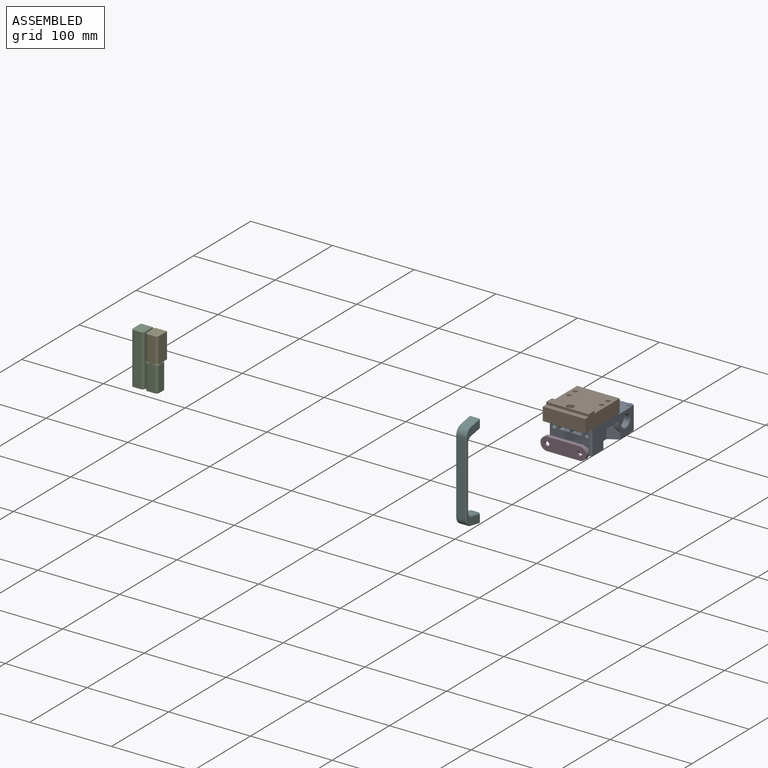
[diagram: assembled view]
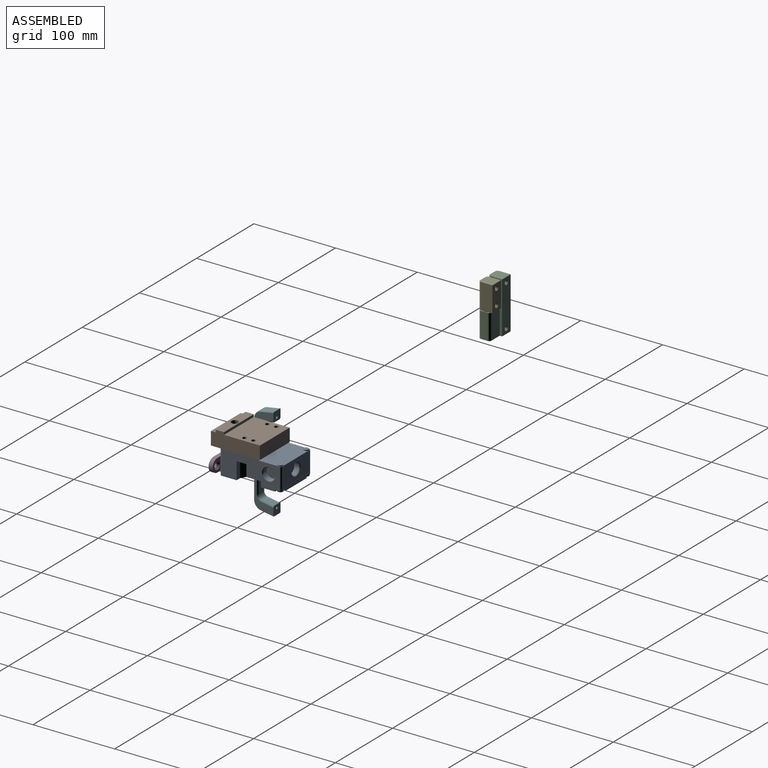
[diagram: assembled view, second angle]
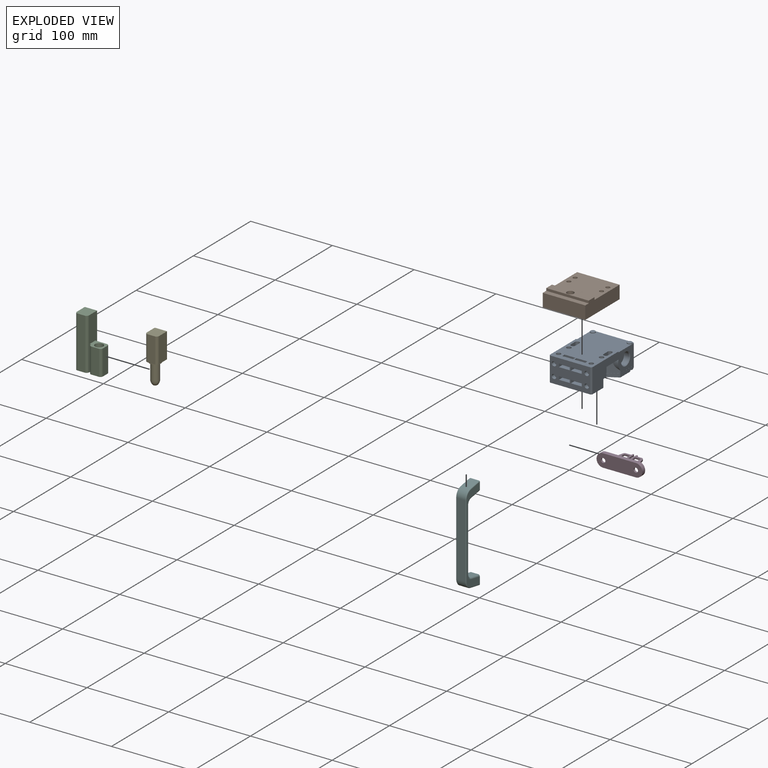
[diagram: exploded view]
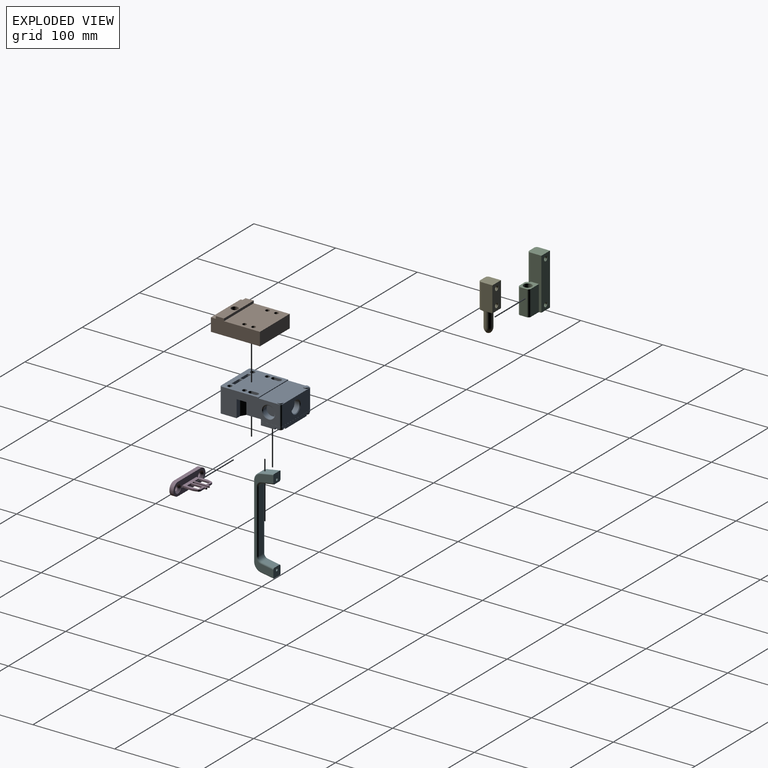
[diagram: exploded view, second angle]
ASSEMBLY  parts=6 mates=2
PART A: 183 faces, bbox 52.7x75.3x30 mm
  f0: plane 52x47mm, normal (0,0,-1), area 2116.3mm2, adj f1,f2,f120,f121,f122,f123,f124,f125
  f1: plane 71x30mm, normal (1,0,0), area 1211.5mm2, adj f0,f77,f154,f155,f156,f159,f161,f162
  f2: plane 71x30mm, normal (-1,0,0), area 1211.5mm2, adj f0,f77,f151,f152,f153,f159,f163,f164
  f3: sphere r=10.19mm, area 21.5mm2, adj f33,f51,f52,f53,f54,f55,f56,f57
  f4: sphere r=10.19mm, area 21.5mm2, adj f29,f34,f35,f36,f37,f38,f39,f40
  f5: plane 2.46x2.46mm, normal (0,0,1), area 1.1mm2, adj f8,f10,f11,f32
  f6: plane 2.46x2.46mm, normal (0,0,1), area 1.1mm2, adj f9,f11,f12,f28
  f7: plane 52x32mm, normal (0,0,1), area 1469.2mm2, adj f8,f9,f11,f13,f14,f15,f16,f17
  f8: plane 22.82x4.4mm, normal (-1,0,0), area 89.4mm2, adj f5,f7,f10,f16,f22,f25,f30,f68
  f9: plane 22.82x4.4mm, normal (1,0,0), area 89.4mm2, adj f6,f7,f12,f15,f18,f20,f26,f68
  f10: cylinder r=2mm len=2.4mm, axis (0,0,-1), area 7.5mm2, adj f5,f8,f11,f68
  f11: plane 48x4.4mm, normal (0,-1,0), area 189.2mm2, adj f5,f6,f7,f10,f12,f18,f19,f22
  f12: cylinder r=2mm len=2.4mm, axis (0,0,-1), area 7.5mm2, adj f6,f9,f11,f68
  f13: plane 4.4x0.25mm, normal (-1,0,0), area 1.1mm2, adj f7,f16,f17,f68
  f14: plane 4.4x0.25mm, normal (1,0,0), area 1.1mm2, adj f7,f15,f17,f68
  f15: plane 12x6.93mm, normal (0.5,0.87,0), area 61mm2, adj f7,f9,f14,f68
  f16: plane 12x6.93mm, normal (-0.5,0.87,0), area 61mm2, adj f7,f8,f13,f68
  f17: plane 28x4.4mm, normal (0,1,0), area 123.2mm2, adj f7,f13,f14,f68
  f18: plane 7.5x7.5mm, normal (0,0,1), area 9.4mm2, adj f9,f11,f19,f20,f21,f28
  f19: plane 3.5x2mm, normal (1,0,0), area 7mm2, adj f7,f11,f18,f21
  f20: plane 3.5x2mm, normal (0,-1,0), area 7mm2, adj f7,f9,f18,f21
  f21: cylinder r=4mm len=4mm, axis (0,0,-1), area 12.6mm2, adj f7,f18,f19,f20
  f22: plane 7.5x7.5mm, normal (0,0,1), area 9.4mm2, adj f8,f11,f23,f24,f25,f32
  f23: plane 3.5x2mm, normal (-1,0,0), area 7mm2, adj f7,f11,f22,f24
  f24: cylinder r=4mm len=4mm, axis (0,0,-1), area 12.6mm2, adj f7,f22,f23,f25
  f25: plane 3.5x2mm, normal (0,-1,0), area 7mm2, adj f7,f8,f22,f24
  f26: plane 2.08x0.15mm, normal (0,0,-1), area 0.2mm2, adj f9,f28
  f27: plane 2.08x0.15mm, normal (0,0,-1), area 0.2mm2, adj f11,f28
  f28: cone r=3.65mm half-angle=6deg, axis (0,0,-1), area 23.1mm2, adj f6,f18,f26,f27,f29
  f29: torus R=2.89mm, axis (0,0,1), area 16.1mm2, adj f4,f28
  f30: plane 2.08x0.15mm, normal (0,0,-1), area 0.2mm2, adj f8,f32
  f31: plane 2.08x0.15mm, normal (0,0,-1), area 0.2mm2, adj f11,f32
  f32: cone r=3.65mm half-angle=6deg, axis (0,0,-1), area 23.1mm2, adj f5,f22,f30,f31,f33
  f33: torus R=2.89mm, axis (0,0,1), area 16.1mm2, adj f3,f32
  f34: plane 1.48x0.74mm, normal (0.71,-0.71,0), area 1.5mm2, adj f4,f35,f49,f50
  f35: plane 1.32x0.85mm, normal (0.71,0.71,0), area 1.6mm2, adj f4,f34,f36,f50
  f36: plane 1.48x0.74mm, normal (-0.71,0.71,0), area 1.5mm2, adj f4,f35,f37,f50
  f37: cylinder r=0.5mm len=1.5mm, axis (0,0,-1), area 1.2mm2, adj f4,f36,f38,f50
  f38: plane 1.48x0.74mm, normal (0.71,0.71,0), area 1.5mm2, adj f4,f37,f39,f50
  f39: plane 1.32x0.85mm, normal (-0.71,0.71,0), area 1.6mm2, adj f4,f38,f40,f50
  f40: plane 1.48x0.74mm, normal (-0.71,-0.71,0), area 1.5mm2, adj f4,f39,f41,f50
  f41: cylinder r=0.5mm len=1.5mm, axis (0,0,-1), area 1.2mm2, adj f4,f40,f42,f50
  f42: plane 1.48x0.74mm, normal (-0.71,0.71,0), area 1.5mm2, adj f4,f41,f43,f50
  f43: plane 1.32x0.85mm, normal (-0.71,-0.71,0), area 1.6mm2, adj f4,f42,f44,f50
  f44: plane 1.48x0.74mm, normal (0.71,-0.71,0), area 1.5mm2, adj f4,f43,f45,f50
  f45: cylinder r=0.5mm len=1.5mm, axis (0,0,-1), area 1.2mm2, adj f4,f44,f46,f50
  f46: plane 1.48x0.74mm, normal (-0.71,-0.71,0), area 1.5mm2, adj f4,f45,f47,f50
  f47: plane 1.32x0.85mm, normal (0.71,-0.71,0), area 1.6mm2, adj f4,f46,f48,f50
  f48: plane 1.48x0.74mm, normal (0.71,0.71,0), area 1.5mm2, adj f4,f47,f49,f50
  f49: cylinder r=0.5mm len=1.5mm, axis (0,0,-1), area 1.2mm2, adj f4,f34,f48,f50
  f50: plane 3.89x3.89mm, normal (0,0,1), area 9.1mm2, adj f34,f35,f36,f37,f38,f39,f40,f41
  f51: plane 1.48x0.74mm, normal (0.71,-0.71,0), area 1.5mm2, adj f3,f52,f66,f67
  f52: plane 1.32x0.85mm, normal (0.71,0.71,0), area 1.6mm2, adj f3,f51,f53,f67
  f53: plane 1.48x0.74mm, normal (-0.71,0.71,0), area 1.5mm2, adj f3,f52,f54,f67
  f54: cylinder r=0.5mm len=1.5mm, axis (0,0,-1), area 1.2mm2, adj f3,f53,f55,f67
  f55: plane 1.48x0.74mm, normal (0.71,0.71,0), area 1.5mm2, adj f3,f54,f56,f67
  f56: plane 1.32x0.85mm, normal (-0.71,0.71,0), area 1.6mm2, adj f3,f55,f57,f67
  f57: plane 1.48x0.74mm, normal (-0.71,-0.71,0), area 1.5mm2, adj f3,f56,f58,f67
  f58: cylinder r=0.5mm len=1.5mm, axis (0,0,-1), area 1.2mm2, adj f3,f57,f59,f67
  f59: plane 1.48x0.74mm, normal (-0.71,0.71,0), area 1.5mm2, adj f3,f58,f60,f67
  f60: plane 1.32x0.85mm, normal (-0.71,-0.71,0), area 1.6mm2, adj f3,f59,f61,f67
  f61: plane 1.48x0.74mm, normal (0.71,-0.71,0), area 1.5mm2, adj f3,f60,f62,f67
  f62: cylinder r=0.5mm len=1.5mm, axis (0,0,-1), area 1.2mm2, adj f3,f61,f63,f67
  f63: plane 1.48x0.74mm, normal (-0.71,-0.71,0), area 1.5mm2, adj f3,f62,f64,f67
  f64: plane 1.32x0.85mm, normal (0.71,-0.71,0), area 1.6mm2, adj f3,f63,f65,f67
  f65: plane 1.48x0.74mm, normal (0.71,0.71,0), area 1.5mm2, adj f3,f64,f66,f67
  f66: cylinder r=0.5mm len=1.5mm, axis (0,0,-1), area 1.2mm2, adj f3,f51,f65,f67
  f67: plane 3.89x3.89mm, normal (0,0,1), area 9.1mm2, adj f51,f52,f53,f54,f55,f56,f57,f58
  f68: plane 52x32mm, normal (0,0,-1), area 16.7mm2, adj f8,f9,f10,f11,f12,f13,f14,f15
  f69: plane 22.72x0.2mm, normal (-1,0,0), area 4.5mm2, adj f68,f70,f76,f77
  f70: plane 12.43x7.18mm, normal (-0.5,0.87,0), area 2.9mm2, adj f68,f69,f71,f77
  f71: plane 26.93x0.2mm, normal (0,1,0), area 5.4mm2, adj f68,f70,f72,f77
  f72: plane 12.43x7.18mm, normal (0.5,0.87,0), area 2.9mm2, adj f68,f71,f73,f77
  f73: plane 22.72x0.2mm, normal (1,0,0), area 4.5mm2, adj f68,f72,f74,f77
  f74: cylinder r=1.9mm len=1.9mm, axis (0,0,-1), area 0.6mm2, adj f68,f73,f75,f77
  f75: plane 48x0.2mm, normal (0,-1,0), area 9.6mm2, adj f68,f74,f76,f77
  f76: cylinder r=1.9mm len=1.9mm, axis (0,0,-1), area 0.6mm2, adj f68,f69,f75,f77
  f77: plane 52x32.5mm, normal (0,0,1), area 30.7mm2, adj f1,f2,f69,f70,f71,f72,f73,f74
  f78: plane 13.3x4mm, normal (0,1,0), area 53.2mm2, adj f93,f94,f95,f96
  f79: plane 13.3x4mm, normal (0,1,0), area 53.2mm2, adj f97,f98,f99,f100
  f80: plane 13.3x4mm, normal (0,1,0), area 53.2mm2, adj f101,f102,f103,f104
  f81: plane 13.3x4mm, normal (0,1,0), area 53.2mm2, adj f105,f106,f107,f108
  f82: plane 5.5x5.5mm, normal (0,1,0), area 23.8mm2, adj f109
  f83: plane 5.5x5.5mm, normal (0,1,0), area 23.8mm2, adj f110
  f84: plane 5.5x5.5mm, normal (0,1,0), area 23.8mm2, adj f111
  f85: plane 5.5x5.5mm, normal (0,1,0), area 23.8mm2, adj f112
  f86: plane 14.38x14.38mm, normal (-1,0,0), area 162.3mm2, adj f117
  f87: plane 14.38x14.38mm, normal (1,0,0), area 162.3mm2, adj f118
  f88: plane 14.38x14.38mm, normal (0,-1,0), area 162.3mm2, adj f119
  f89: plane 13.3x4mm, normal (0,0,-1), area 53.2mm2, adj f120,f121,f122,f123
  f90: plane 5.5x5.5mm, normal (0,0,-1), area 23.8mm2, adj f124
  f91: plane 5.5x5.5mm, normal (0,0,-1), area 23.8mm2, adj f125
  f92: plane 13.3x4mm, normal (0,0,-1), area 53.2mm2, adj f126,f127,f128,f129
  f93: plane 6x4mm, normal (1,0,0), area 24mm2, adj f78,f94,f96,f130
  f94: plane 13.3x6mm, normal (0,0,-1), area 79.8mm2, adj f78,f93,f95,f130
  f95: plane 6x4mm, normal (-1,0,0), area 24mm2, adj f78,f94,f96,f130
  f96: plane 13.3x6mm, normal (0,0,1), area 79.8mm2, adj f78,f93,f95,f130
  f97: plane 6x4mm, normal (1,0,0), area 24mm2, adj f79,f98,f100,f130
  f98: plane 13.3x6mm, normal (0,0,-1), area 79.8mm2, adj f79,f97,f99,f130
  f99: plane 6x4mm, normal (-1,0,0), area 24mm2, adj f79,f98,f100,f130
  f100: plane 13.3x6mm, normal (0,0,1), area 79.8mm2, adj f79,f97,f99,f130
  f101: plane 6x4mm, normal (1,0,0), area 24mm2, adj f80,f102,f104,f130
  f102: plane 13.3x6mm, normal (0,0,-1), area 79.8mm2, adj f80,f101,f103,f130
  f103: plane 6x4mm, normal (-1,0,0), area 24mm2, adj f80,f102,f104,f130
  f104: plane 13.3x6mm, normal (0,0,1), area 79.8mm2, adj f80,f101,f103,f130
  f105: plane 6x4mm, normal (1,0,0), area 24mm2, adj f81,f106,f108,f130
  f106: plane 13.3x6mm, normal (0,0,-1), area 79.8mm2, adj f81,f105,f107,f130
  f107: plane 6x4mm, normal (-1,0,0), area 24mm2, adj f81,f106,f108,f130
  f108: plane 13.3x6mm, normal (0,0,1), area 79.8mm2, adj f81,f105,f107,f130
  f109: cylinder r=2.75mm len=5.5mm, axis (0,1,0), area 77.8mm2, adj f82,f130
  f110: cylinder r=2.75mm len=5.5mm, axis (0,1,0), area 77.8mm2, adj f83,f130
  f111: cylinder r=2.75mm len=5.5mm, axis (0,1,0), area 77.8mm2, adj f84,f130
  f112: cylinder r=2.75mm len=5.5mm, axis (0,1,0), area 77.8mm2, adj f85,f130
  f113: plane 13.3x4mm, normal (0,0,1), area 53.2mm2, adj f131,f132,f133,f134
  f114: plane 13.3x4mm, normal (0,0,1), area 53.2mm2, adj f135,f136,f137,f138
  f115: plane 5.5x5.5mm, normal (0,0,1), area 23.8mm2, adj f139
  f116: plane 5.5x5.5mm, normal (0,0,1), area 23.8mm2, adj f140
  f117: cylinder r=7.19mm len=14.38mm, axis (1,0,0), area 279.5mm2, adj f86,f153
  f118: cylinder r=7.19mm len=14.38mm, axis (1,0,0), area 279.5mm2, adj f87,f156
  f119: cylinder r=7.19mm len=14.38mm, axis (0,1,0), area 279.5mm2, adj f88,f157
  f120: plane 5.99x4mm, normal (-1,0,0), area 24mm2, adj f0,f89,f121,f123
  f121: plane 13.3x5.99mm, normal (0,1,0), area 79.7mm2, adj f0,f89,f120,f122
  f122: plane 5.99x4mm, normal (1,0,0), area 24mm2, adj f0,f89,f121,f123
  f123: plane 13.3x5.99mm, normal (0,-1,0), area 79.7mm2, adj f0,f89,f120,f122
  f124: cylinder r=2.75mm len=5.5mm, axis (0,0,1), area 81.5mm2, adj f0,f90
  f125: cylinder r=2.75mm len=5.5mm, axis (0,0,1), area 81.5mm2, adj f0,f91
  f126: plane 5.99x4mm, normal (-1,0,0), area 24mm2, adj f0,f92,f127,f129
  f127: plane 13.3x5.99mm, normal (0,1,0), area 79.7mm2, adj f0,f92,f126,f128
  f128: plane 5.99x4mm, normal (1,0,0), area 24mm2, adj f0,f92,f127,f129
  f129: plane 13.3x5.99mm, normal (0,-1,0), area 79.7mm2, adj f0,f92,f126,f128
  f130: plane 48x30mm, normal (0,1,0), area 1132.2mm2, adj f0,f93,f94,f95,f96,f97,f98,f99
  f131: plane 13.3x5.99mm, normal (0,1,0), area 79.7mm2, adj f113,f132,f134,f159
  f132: plane 5.99x4mm, normal (-1,0,0), area 24mm2, adj f113,f131,f133,f159
  f133: plane 13.3x5.99mm, normal (0,-1,0), area 79.7mm2, adj f113,f132,f134,f159
  f134: plane 5.99x4mm, normal (1,0,0), area 24mm2, adj f113,f131,f133,f159
  f135: plane 13.3x5.99mm, normal (0,1,0), area 79.7mm2, adj f114,f136,f138,f159
  f136: plane 5.99x4mm, normal (-1,0,0), area 24mm2, adj f114,f135,f137,f159
  f137: plane 13.3x5.99mm, normal (0,-1,0), area 79.7mm2, adj f114,f136,f138,f159
  f138: plane 5.99x4mm, normal (1,0,0), area 24mm2, adj f114,f135,f137,f159
  f139: cylinder r=2.75mm len=5.5mm, axis (0,0,1), area 81.5mm2, adj f115,f159
  f140: cylinder r=2.75mm len=5.5mm, axis (0,0,1), area 81.5mm2, adj f116,f159
  f141: cylinder r=2.75mm len=9mm, axis (0,0,-1), area 155.5mm2, adj f0,f161
  f142: plane 9x7mm, normal (-1,0,0), area 63mm2, adj f0,f143,f145,f161
  f143: cylinder r=2.75mm len=9mm, axis (0,0,-1), area 77.8mm2, adj f0,f142,f144,f161
  f144: plane 9x7mm, normal (1,0,0), area 63mm2, adj f0,f143,f145,f161
  f145: cylinder r=2.75mm len=9mm, axis (0,0,-1), area 77.8mm2, adj f0,f142,f144,f161
  f146: cylinder r=2.75mm len=9mm, axis (0,0,-1), area 155.5mm2, adj f0,f164
  f147: plane 9x7mm, normal (-1,0,0), area 63mm2, adj f0,f148,f150,f164
  f148: cylinder r=2.75mm len=9mm, axis (0,0,-1), area 77.8mm2, adj f0,f147,f149,f164
  f149: plane 9x7mm, normal (1,0,0), area 63mm2, adj f0,f148,f150,f164
  f150: cylinder r=2.75mm len=9mm, axis (0,0,-1), area 77.8mm2, adj f0,f147,f149,f164
  f151: cylinder r=2mm len=30mm, axis (0,0,-1), area 94.2mm2, adj f0,f2,f130,f159
  f152: plane 21x6mm, normal (0,-1,0), area 126mm2, adj f2,f158,f159,f164
  f153: cone r=8mm half-angle=45deg, axis (-1,0,0), area 54.8mm2, adj f2,f117
  f154: plane 21x6mm, normal (0,-1,0), area 126mm2, adj f1,f159,f160,f161
  f155: cylinder r=2mm len=30mm, axis (0,0,-1), area 94.2mm2, adj f0,f1,f130,f159
  f156: cone r=7.19mm half-angle=45deg, axis (1,0,0), area 54.8mm2, adj f1,f118
  f157: cone r=8mm half-angle=45deg, axis (0,-1,0), area 54.8mm2, adj f119,f171
  f158: plane 21x6mm, normal (-0.5,-0.87,0), area 145.5mm2, adj f152,f159,f164,f169
  f159: plane 52x42.5mm, normal (0,0,1), area 1528.3mm2, adj f1,f2,f130,f131,f132,f133,f134,f135
  f160: plane 21x6mm, normal (0.5,-0.87,0), area 145.5mm2, adj f154,f159,f161,f168
  f161: plane 26.63x12mm, normal (0,0,1), area 210.1mm2, adj f1,f141,f142,f143,f144,f145,f154,f160
  f162: cylinder r=13mm len=13.06mm, axis (1,0,0), area 66.6mm2, adj f1,f161,f167
  f163: cylinder r=13mm len=13.06mm, axis (1,0,0), area 66.6mm2, adj f2,f164,f166
  f164: plane 26.63x12mm, normal (0,0,1), area 210.1mm2, adj f2,f146,f147,f148,f149,f150,f152,f158
  f165: plane 28x4.6mm, normal (0,-1,0), area 128.8mm2, adj f77,f159,f168,f169
  f166: plane 16.4x12mm, normal (-0.5,0.87,0), area 153.6mm2, adj f2,f77,f163,f164,f169
  f167: plane 16.4x12mm, normal (0.5,0.87,0), area 153.6mm2, adj f1,f77,f161,f162,f168
  f168: plane 21x19.29mm, normal (1,0,0), area 401.6mm2, adj f77,f159,f160,f161,f165,f167
  f169: plane 21x19.29mm, normal (-1,0,0), area 401.6mm2, adj f77,f158,f159,f164,f165,f166
  f170: cylinder r=2mm len=24.4mm, axis (0,0,-1), area 76.7mm2, adj f1,f77,f171,f180
  f171: plane 48x24.4mm, normal (0,-1,0), area 970.1mm2, adj f77,f157,f170,f172,f180
  f172: cylinder r=2mm len=24.4mm, axis (0,0,-1), area 76.7mm2, adj f2,f77,f171,f180
  f173: cylinder r=1.73mm len=3.46mm, axis (0,0,1), area 1.1mm2, adj f159,f174
  f174: plane 3.46x3.46mm, normal (0,0,1), area 9.4mm2, adj f173
  f175: cylinder r=1.73mm len=3.46mm, axis (0,0,1), area 1.1mm2, adj f159,f176
  f176: plane 3.46x3.46mm, normal (0,0,1), area 9.4mm2, adj f175
  f177: cylinder r=3mm len=6mm, axis (0,0,-1), area 18.8mm2, adj f180,f182
  f178: cylinder r=3mm len=6mm, axis (0,0,-1), area 18.8mm2, adj f180,f181
  f179: plane 52x1mm, normal (0,-1,0), area 52mm2, adj f0,f1,f2,f180
  f180: plane 52x28mm, normal (0,0,-1), area 1397.7mm2, adj f1,f2,f170,f171,f172,f177,f178,f179
  f181: plane 6x6mm, normal (0,0,-1), area 28.3mm2, adj f178
  f182: plane 6x6mm, normal (0,0,-1), area 28.3mm2, adj f177
PART B: 17 faces, bbox 52x19x60 mm
  f0: plane 52x16mm, normal (0,0,-1), area 832mm2, adj f1,f7,f8,f9
  f1: plane 60x52mm, normal (0,1,0), area 2887.5mm2, adj f0,f2,f8,f9,f12,f13,f14,f15
  f2: plane 52x16mm, normal (0,0,1), area 832mm2, adj f1,f3,f8,f9
  f3: plane 52x44mm, normal (0,-1,0), area 2209.5mm2, adj f2,f4,f8,f9,f13,f14,f15,f16
  f4: plane 52x3mm, normal (0,0,1), area 156mm2, adj f3,f5,f8,f9
  f5: plane 52x10mm, normal (0,-1,0), area 463.3mm2, adj f4,f6,f8,f9,f10
  f6: plane 52x3mm, normal (0,0,-1), area 156mm2, adj f5,f7,f8,f9
  f7: plane 52x6mm, normal (0,-1,0), area 312mm2, adj f0,f6,f8,f9
  f8: plane 60x19mm, normal (1,0,0), area 990mm2, adj f0,f1,f2,f3,f4,f5,f6,f7
  f9: plane 60x19mm, normal (-1,0,0), area 990mm2, adj f0,f1,f2,f3,f4,f5,f6,f7
  f10: cylinder r=4.25mm len=10mm, axis (0,1,0), area 267mm2, adj f5,f11
  f11: plane 14x14mm, normal (0,1,0), area 97.2mm2, adj f10,f12
  f12: cylinder r=7mm len=14mm, axis (0,1,0), area 395.8mm2, adj f1,f11
  f13: cylinder r=2.5mm len=16mm, axis (0,-1,0), area 251.3mm2, adj f1,f3
  f14: cylinder r=2.5mm len=16mm, axis (0,-1,0), area 251.3mm2, adj f1,f3
  f15: cylinder r=2.5mm len=16mm, axis (0,-1,0), area 251.3mm2, adj f1,f3
  f16: cylinder r=2.5mm len=16mm, axis (0,-1,0), area 251.3mm2, adj f1,f3
PART C: 28 faces, bbox 17x63x32 mm
  f0: plane 31x14mm, normal (-1,0,0), area 434mm2, adj f1,f10,f15,f16
  f1: cylinder r=3mm len=31mm, axis (0,-1,0), area 146.1mm2, adj f0,f2,f15,f16
  f2: plane 31x8mm, normal (0,0,1), area 248mm2, adj f1,f3,f15,f16
  f3: cylinder r=3mm len=31mm, axis (0,-1,0), area 146.1mm2, adj f2,f4,f15,f16
  f4: plane 31x9mm, normal (1,0,0), area 279mm2, adj f3,f5,f15,f16
  f5: cylinder r=3mm len=31mm, axis (0,-1,0), area 146.1mm2, adj f4,f6,f15,f16
  f6: plane 31x1mm, normal (0,0,-1), area 31mm2, adj f5,f7,f15,f16
  f7: plane 31x2mm, normal (1,0,0), area 62mm2, adj f6,f10,f15,f16
  f8: plane 17x15mm, normal (0,-1,0), area 251.1mm2, adj f9,f10,f11,f12,f13,f14
  f9: plane 63x15mm, normal (-1,0,0), area 897.5mm2, adj f8,f10,f14,f15,f23,f27
  f10: plane 63x14mm, normal (0,0,1), area 572mm2, adj f0,f7,f8,f9,f11,f15,f16
  f11: cylinder r=3mm len=63mm, axis (0,-1,0), area 296.9mm2, adj f8,f10,f12,f15
  f12: plane 63x9mm, normal (1,0,0), area 567mm2, adj f8,f11,f13,f15
  f13: cylinder r=3mm len=63mm, axis (0,-1,0), area 296.9mm2, adj f8,f12,f14,f15
  f14: plane 63x14mm, normal (0,0,-1), area 882mm2, adj f8,f9,f13,f15
  f15: plane 32x17mm, normal (0,1,0), area 475.3mm2, adj f0,f1,f2,f3,f4,f5,f6,f7
  f16: plane 17x14mm, normal (0,-1,0), area 144.1mm2, adj f0,f1,f2,f3,f4,f5,f6,f7
  f17: plane 9.1x9.1mm, normal (0,-1,0), area 65mm2, adj f18
  f18: torus R=4.55mm, axis (0,-1,0), area 24mm2, adj f17,f19
  f19: cylinder r=5.05mm len=28mm, axis (0,-1,0), area 888.4mm2, adj f16,f18
  f20: cone r=0mm half-angle=60deg, axis (-1,0,0), area 15.5mm2, adj f21
  f21: cylinder r=2.07mm len=11.37mm, axis (-1,0,0), area 147.7mm2, adj f20,f22
  f22: cone r=2.07mm half-angle=31.1deg, axis (-1,0,0), area 20mm2, adj f21,f23
  f23: cylinder r=2.75mm len=5.5mm, axis (-1,0,0), area 8.6mm2, adj f9,f22
  f24: cone r=0mm half-angle=60deg, axis (-1,0,0), area 15.5mm2, adj f25
  f25: cylinder r=2.07mm len=11.37mm, axis (-1,0,0), area 147.7mm2, adj f24,f26
  f26: cone r=2.07mm half-angle=31.1deg, axis (-1,0,0), area 20mm2, adj f25,f27
  f27: cylinder r=2.75mm len=5.5mm, axis (-1,0,0), area 8.6mm2, adj f9,f26
PART D: 70 faces, bbox 56x28.3x16 mm
  f0: plane 2.95x1.4mm, normal (1,0,0), area 3mm2, adj f8,f12,f21,f22,f23,f24,f25,f51
  f1: plane 2.95x1.4mm, normal (-1,0,0), area 3mm2, adj f8,f12,f21,f22,f23,f24,f25,f26
  f2: cylinder r=8mm len=16mm, axis (0,1,0), area 125.7mm2, adj f3,f5,f6,f7
  f3: plane 40x5mm, normal (0,0,1), area 200mm2, adj f2,f4,f6,f7
  f4: cylinder r=8mm len=16mm, axis (0,1,0), area 125.7mm2, adj f3,f5,f6,f7
  f5: plane 40x5mm, normal (0,0,-1), area 200mm2, adj f2,f4,f6,f7
  f6: plane 56x16mm, normal (0,-1,0), area 624.6mm2, adj f2,f3,f4,f5,f10,f11,f13,f14
  f7: plane 56x16mm, normal (0,1,0), area 793.5mm2, adj f2,f3,f4,f5,f15,f18
  f8: plane 27x3.89mm, normal (0,-1,0), area 39.6mm2, adj f0,f1,f9,f12,f13,f14,f25
  f9: plane 27x2.7mm, normal (0,0.3,-0.95), area 76.4mm2, adj f8,f10,f13,f14
  f10: plane 27x0.4mm, normal (0,0,-1), area 10.8mm2, adj f6,f9,f13,f14
  f11: plane 27x0.4mm, normal (0,0,1), area 10.8mm2, adj f6,f12,f13,f14
  f12: plane 27x2.7mm, normal (0,0.3,0.95), area 73.8mm2, adj f0,f1,f8,f11,f13,f14,f24
  f13: plane 3.89x3.1mm, normal (-1,0,0), area 9.1mm2, adj f6,f8,f9,f10,f11,f12
  f14: plane 3.89x3.1mm, normal (1,0,0), area 9.1mm2, adj f6,f8,f9,f10,f11,f12
  f15: cylinder r=2.75mm len=5.5mm, axis (0,-1,0), area 43.2mm2, adj f7,f16
  f16: cone r=2.75mm half-angle=45.6deg, axis (0,-1,0), area 76.6mm2, adj f15,f17
  f17: cylinder r=5mm len=10mm, axis (0,-1,0), area 9.4mm2, adj f6,f16
  f18: cylinder r=2.75mm len=5.5mm, axis (0,-1,0), area 43.2mm2, adj f7,f19
  f19: cone r=2.75mm half-angle=45.6deg, axis (0,-1,0), area 76.6mm2, adj f18,f20
  f20: cylinder r=5mm len=10mm, axis (0,-1,0), area 9.4mm2, adj f6,f19
  f21: plane 23.91x0.3mm, normal (0,0,1), area 7.2mm2, adj f0,f1,f22,f25
  f22: plane 23.91x0mm, normal (0,-1,0), area 0mm2, adj f0,f1,f21,f69
  f23: plane 27x25.3mm, normal (0,0,-1), area 352.9mm2, adj f0,f1,f24,f26,f27,f28,f29,f30
  f24: cylinder r=1mm len=23.91mm, axis (-1,0,0), area 35.5mm2, adj f0,f1,f12,f23
  f25: cylinder r=3mm len=23.91mm, axis (-1,0,0), area 26.9mm2, adj f0,f1,f8,f21
  f26: plane 2x0mm, normal (0,1,0), area 0mm2, adj f1,f23,f68,f69
  f27: plane 4.21x2mm, normal (-1,0,0), area 8.4mm2, adj f23,f28,f68,f69
  f28: plane 4.78x2mm, normal (-0.97,-0.26,0), area 9.9mm2, adj f23,f27,f29,f69
  f29: cylinder r=3mm len=2.9mm, axis (0,0,-1), area 7.9mm2, adj f23,f28,f30,f69
  f30: plane 5.77x2mm, normal (0,-1,0), area 11.5mm2, adj f23,f29,f31,f69
  f31: cylinder r=0.3mm len=2mm, axis (0,0,-1), area 0.9mm2, adj f23,f30,f32,f69
  f32: plane 2x1.43mm, normal (-1,0,0), area 2.9mm2, adj f23,f31,f33,f69
  f33: cylinder r=0.4mm len=2mm, axis (0,0,-1), area 0.6mm2, adj f23,f32,f34,f69
  f34: plane 2x0.67mm, normal (-0.71,-0.71,0), area 1.9mm2, adj f23,f33,f35,f69
  f35: cylinder r=0.4mm len=2mm, axis (0,0,-1), area 1.6mm2, adj f23,f34,f36,f69
  f36: plane 2x1.69mm, normal (0.95,-0.31,0), area 3.5mm2, adj f23,f35,f37,f69
  f37: plane 16.04x2mm, normal (1,0,0), area 32.1mm2, adj f23,f36,f38,f69
  f38: cylinder r=1.25mm len=2.5mm, axis (0,0,-1), area 7.9mm2, adj f23,f37,f39,f69
  f39: plane 16.04x2mm, normal (-1,0,0), area 32.1mm2, adj f23,f38,f40,f69
  f40: plane 2x1.69mm, normal (-0.95,-0.31,0), area 3.5mm2, adj f23,f39,f41,f69
  f41: cylinder r=0.4mm len=2mm, axis (0,0,-1), area 1.6mm2, adj f23,f40,f42,f69
  f42: plane 2x0.67mm, normal (0.71,-0.71,0), area 1.9mm2, adj f23,f41,f43,f69
  f43: cylinder r=0.4mm len=2mm, axis (0,0,-1), area 0.6mm2, adj f23,f42,f44,f69
  f44: plane 2x1.43mm, normal (1,0,0), area 2.9mm2, adj f23,f43,f45,f69
  f45: cylinder r=0.3mm len=2mm, axis (0,0,-1), area 0.9mm2, adj f23,f44,f46,f69
  f46: plane 5.77x2mm, normal (0,-1,0), area 11.5mm2, adj f23,f45,f47,f69
  f47: cylinder r=3mm len=2.9mm, axis (0,0,-1), area 7.9mm2, adj f23,f46,f48,f69
  f48: plane 4.78x2mm, normal (0.97,-0.26,0), area 9.9mm2, adj f23,f47,f49,f69
  f49: plane 4.21x2mm, normal (1,0,0), area 8.4mm2, adj f23,f48,f50,f69
  f50: plane 10.99x2mm, normal (0.99,0.14,0), area 22.2mm2, adj f23,f49,f51,f69
  f51: plane 2x0mm, normal (0,1,0), area 0mm2, adj f0,f23,f50,f69
  f52: plane 13.5x2mm, normal (1,0,0), area 27mm2, adj f23,f53,f66,f69
  f53: cylinder r=0.3mm len=2mm, axis (0,0,-1), area 0.9mm2, adj f23,f52,f54,f69
  f54: plane 6.15x2mm, normal (0,-1,0), area 12.3mm2, adj f23,f53,f55,f69
  f55: cylinder r=0.3mm len=2mm, axis (0,0,-1), area 0.9mm2, adj f23,f54,f56,f69
  f56: plane 13.5x2mm, normal (-1,0,0), area 27mm2, adj f23,f55,f57,f69
  f57: cylinder r=0.3mm len=2mm, axis (0,0,-1), area 0.9mm2, adj f23,f56,f58,f69
  f58: plane 6.15x2mm, normal (0,1,0), area 12.3mm2, adj f23,f57,f66,f69
  f59: cylinder r=0.3mm len=2mm, axis (0,0,-1), area 0.9mm2, adj f23,f60,f67,f69
  f60: plane 6.15x2mm, normal (0,-1,0), area 12.3mm2, adj f23,f59,f61,f69
  f61: cylinder r=0.3mm len=2mm, axis (0,0,-1), area 0.9mm2, adj f23,f60,f62,f69
  f62: plane 13.5x2mm, normal (-1,0,0), area 27mm2, adj f23,f61,f63,f69
  f63: cylinder r=0.3mm len=2mm, axis (0,0,-1), area 0.9mm2, adj f23,f62,f64,f69
  f64: plane 6.15x2mm, normal (0,1,0), area 12.3mm2, adj f23,f63,f65,f69
  f65: cylinder r=0.3mm len=2mm, axis (0,0,-1), area 0.9mm2, adj f23,f64,f67,f69
  f66: cylinder r=0.3mm len=2mm, axis (0,0,-1), area 0.9mm2, adj f23,f52,f58,f69
  f67: plane 13.5x2mm, normal (1,0,0), area 27mm2, adj f23,f59,f65,f69
  f68: plane 10.99x2mm, normal (-0.99,0.14,0), area 22.2mm2, adj f23,f26,f27,f69
  f69: plane 27x25mm, normal (0,0,1), area 345.8mm2, adj f0,f1,f22,f26,f27,f28,f29,f30
PART E: 21 faces, bbox 17x57x15 mm
  f0: plane 31x15mm, normal (-1,0,0), area 417.5mm2, adj f1,f5,f6,f7,f16,f20
  f1: plane 31x14mm, normal (0,0,1), area 434mm2, adj f0,f2,f6,f7
  f2: cylinder r=3mm len=31mm, axis (0,1,0), area 146.1mm2, adj f1,f3,f6,f7
  f3: plane 31x9mm, normal (1,0,0), area 279mm2, adj f2,f4,f6,f7
  f4: cylinder r=3mm len=31mm, axis (0,1,0), area 146.1mm2, adj f3,f5,f6,f7
  f5: plane 31x14mm, normal (0,0,-1), area 434mm2, adj f0,f4,f6,f7
  f6: plane 17x15mm, normal (0,-1,0), area 251.1mm2, adj f0,f1,f2,f3,f4,f5
  f7: plane 17x15mm, normal (0,1,0), area 97.2mm2, adj f0,f1,f2,f3,f4,f5,f12
  f8: plane 5x5mm, normal (0,1,0), area 19.6mm2, adj f9
  f9: revolved ~10x10mm, area 169.5mm2, adj f8,f10
  f10: cylinder r=5mm len=19.19mm, axis (0,-1,0), area 602.9mm2, adj f9,f11
  f11: plane 14x14mm, normal (0,1,0), area 75.4mm2, adj f10,f12
  f12: cylinder r=7mm len=14mm, axis (0,-1,0), area 44mm2, adj f7,f11
  f13: cone r=0mm half-angle=60deg, axis (-1,0,0), area 15.5mm2, adj f14
  f14: cylinder r=2.07mm len=11.37mm, axis (-1,0,0), area 147.7mm2, adj f13,f15
  f15: cone r=2.07mm half-angle=31.1deg, axis (-1,0,0), area 20mm2, adj f14,f16
  f16: cylinder r=2.75mm len=5.5mm, axis (-1,0,0), area 8.6mm2, adj f0,f15
  f17: cone r=0mm half-angle=60deg, axis (-1,0,0), area 15.5mm2, adj f18
  f18: cylinder r=2.07mm len=11.37mm, axis (-1,0,0), area 147.7mm2, adj f17,f19
  f19: cone r=2.07mm half-angle=31.1deg, axis (-1,0,0), area 20mm2, adj f18,f20
  f20: cylinder r=2.75mm len=5.5mm, axis (-1,0,0), area 8.6mm2, adj f0,f19
PART F: 38 faces, bbox 115.5x12.5x25.2 mm
  f0: plane 14.87x8.5mm, normal (0.98,0,-0.17), area 128.3mm2, adj f7,f26,f32,f37
  f1: plane 77.05x8.5mm, normal (0,0,-1), area 655mm2, adj f26,f27,f30,f35
  f2: plane 14.87x8.5mm, normal (-0.98,0,-0.17), area 128.3mm2, adj f3,f27,f28,f33
  f3: plane 12.5x11.68mm, normal (0,0,-1), area 135.2mm2, adj f2,f4,f8,f9,f15,f20,f25,f28
  f4: plane 15.74x10.5mm, normal (0.98,0,0.17), area 167.8mm2, adj f3,f11,f20,f25
  f5: plane 90.25x10.5mm, normal (0,0,1), area 947.7mm2, adj f10,f11,f18,f23
  f6: plane 15.74x10.5mm, normal (-0.98,0,0.17), area 167.8mm2, adj f7,f10,f16,f21
  f7: plane 12.5x11.68mm, normal (0,0,-1), area 135.2mm2, adj f0,f6,f8,f9,f13,f16,f21,f32
  f8: plane 113.47x23mm, normal (0,-1,0), area 564.9mm2, adj f3,f7,f21,f22,f23,f24,f25,f28
  f9: plane 113.47x23mm, normal (0,1,0), area 564.9mm2, adj f3,f7,f16,f17,f18,f19,f20,f33
  f10: cylinder r=10mm len=10.5mm, axis (0,1,0), area 146.6mm2, adj f5,f6,f17,f22
  f11: cylinder r=10mm len=10.5mm, axis (0,-1,0), area 146.6mm2, adj f4,f5,f19,f24
  f12: cone r=0mm half-angle=59deg, axis (0,0,-1), area 10mm2, adj f13
  f13: cylinder r=1.65mm len=12.1mm, axis (0,0,-1), area 125.4mm2, adj f7,f12
  f14: cone r=0mm half-angle=59deg, axis (0,0,-1), area 10mm2, adj f15
  f15: cylinder r=1.65mm len=12.1mm, axis (0,0,-1), area 125.4mm2, adj f3,f14
  f16: cylinder r=1mm len=15.91mm, axis (-0.17,0,-0.98), area 25mm2, adj f6,f7,f9,f17
  f17: torus R=9mm, axis (0,-1,0), area 21.1mm2, adj f9,f10,f16,f18
  f18: cylinder r=1mm len=90.25mm, axis (-1,0,0), area 141.8mm2, adj f5,f9,f17,f19
  f19: torus R=9mm, axis (0,-1,0), area 21.1mm2, adj f9,f11,f18,f20
  f20: cylinder r=1mm len=15.91mm, axis (-0.17,0,0.98), area 25mm2, adj f3,f4,f9,f19
  f21: cylinder r=1mm len=15.91mm, axis (0.17,0,0.98), area 25mm2, adj f6,f7,f8,f22
  f22: torus R=9mm, axis (0,-1,0), area 21.1mm2, adj f8,f10,f21,f23
  f23: cylinder r=1mm len=90.25mm, axis (1,0,0), area 141.8mm2, adj f5,f8,f22,f24
  f24: torus R=9mm, axis (0,-1,0), area 21.1mm2, adj f8,f11,f23,f25
  f25: cylinder r=1mm len=15.91mm, axis (0.17,0,-0.98), area 25mm2, adj f3,f4,f8,f24
  f26: cylinder r=5mm len=8.5mm, axis (0,-1,0), area 59.3mm2, adj f0,f1,f31,f36
  f27: cylinder r=5mm len=8.5mm, axis (0,1,0), area 59.3mm2, adj f1,f2,f29,f34
  f28: cylinder r=2mm len=15.56mm, axis (-0.17,0,0.98), area 47.8mm2, adj f2,f3,f8,f29
  f29: torus R=7mm, axis (0,-1,0), area 25.1mm2, adj f8,f27,f28,f30
  f30: cylinder r=2mm len=77.05mm, axis (-1,0,0), area 242.1mm2, adj f1,f8,f29,f31
  f31: torus R=7mm, axis (0,-1,0), area 25.1mm2, adj f8,f26,f30,f32
  f32: cylinder r=2mm len=15.56mm, axis (-0.17,0,-0.98), area 47.8mm2, adj f0,f7,f8,f31
  f33: cylinder r=2mm len=15.56mm, axis (0.17,0,-0.98), area 47.8mm2, adj f2,f3,f9,f34
  f34: torus R=7mm, axis (0,-1,0), area 25.1mm2, adj f9,f27,f33,f35
  f35: cylinder r=2mm len=77.05mm, axis (1,0,0), area 242.1mm2, adj f1,f9,f34,f36
  f36: torus R=7mm, axis (0,-1,0), area 25.1mm2, adj f9,f26,f35,f37
  f37: cylinder r=2mm len=15.56mm, axis (0.17,0,0.98), area 47.8mm2, adj f0,f7,f9,f36
PLACE A rot(axis=(1,0,0),180deg) t=(1690.22,505.09,-404.14)mm
PLACE B rot(axis=(-1,0,0),90deg) t=(1664.22,449.09,-394.64)mm
PLACE C rot(axis=(-0.58,0.58,-0.58),120deg) t=(1203.59,409.74,-422.54)mm
PLACE D rot(axis=(0,0,1),180deg) t=(1690.32,417.74,-427.32)mm
PLACE E rot(axis=(-0.58,0.58,-0.58),120deg) t=(1203.59,409.74,-453.54)mm
PLACE F rot(axis=(0.58,-0.58,0.58),120deg) t=(1581.24,397.78,-474.64)mm
MATE fastened B.f16 <-> A.f146  axis (0,0,1) through (1670.22,456.09,-404.14)mm
MATE revolute E.f10 <-> C.f18  axis (0,0,1) through (1203.59,399.74,-454.54)mm
